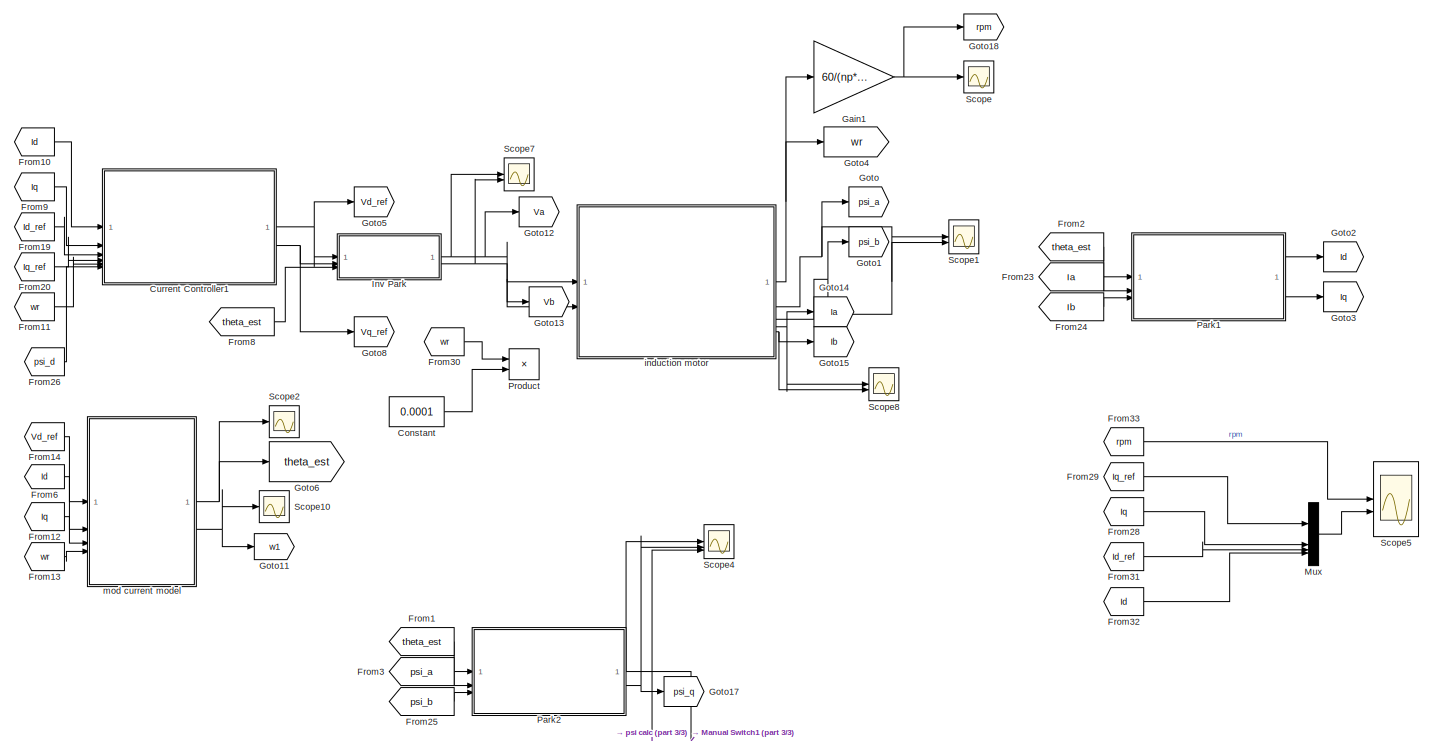
[diagram: root canvas - part 1/3, right side, full height]
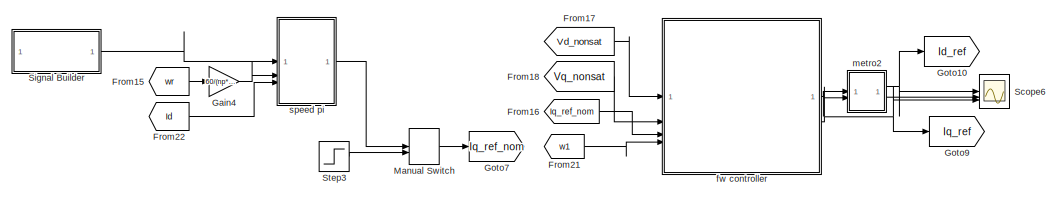
[diagram: root canvas - part 2/3, top left region]
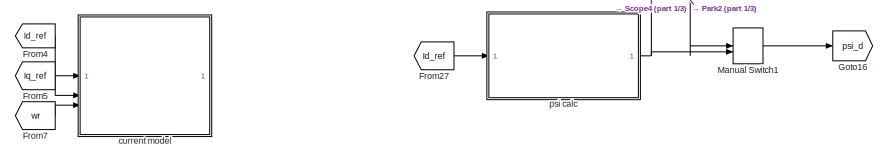
[diagram: root canvas - part 3/3, bottom center region]
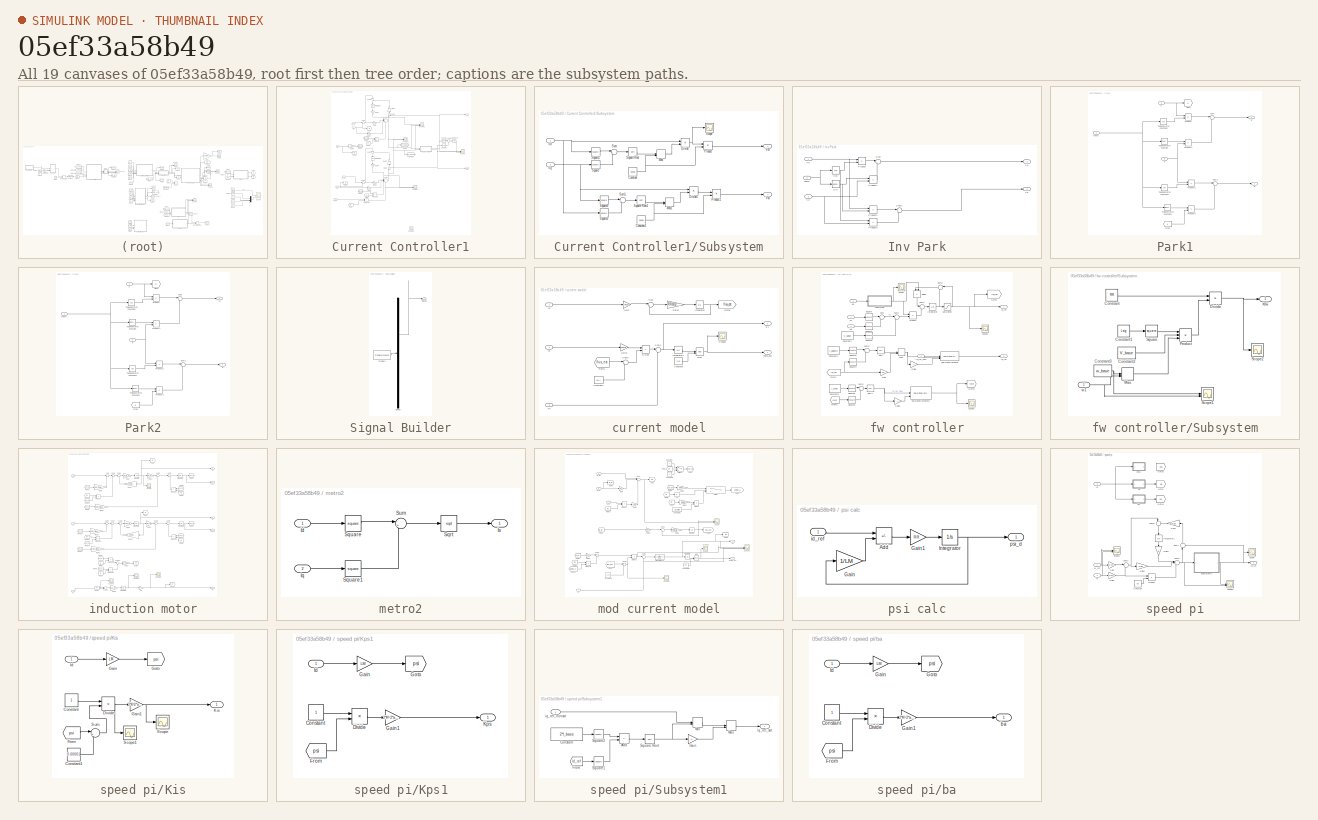
[diagram: thumbnail index - all 19 canvases of the model, root first then tree order]
MODEL slx_05ef33a58b49
KIND model
CONFIG AbsTol = auto
CONFIG EnableMultiTasking = off
CONFIG FixedStep = auto
CONFIG MaxStep = 1e-4
CONFIG MinStep = 1e-7
CONFIG RelTol = 1e-3
CONFIG SampleTimeConstraint = Unconstrained
CONFIG SolverName = ode15s
CONFIG StartTime = 0.0
CONFIG StopTime = 2
BLOCK [Constant] Constant
  Value = 0.0001
BLOCK [SubSystem] Current Controller1
BLOCK [From] Current Controller1/From
  GotoTag = Id
BLOCK [From] Current Controller1/From1
  GotoTag = wrxLsig
BLOCK [From] Current Controller1/From2
  GotoTag = wrxLsig
BLOCK [From] Current Controller1/From3
  GotoTag = Iq
BLOCK [From] Current Controller1/From4
  GotoTag = wr
BLOCK [Gain] Current Controller1/Gain
  Gain = Kp
BLOCK [Gain] Current Controller1/Gain1
  Gain = Ki
  NameLocation = left
BLOCK [Gain] Current Controller1/Gain2
  Gain = 1/Kp
  NameLocation = right
BLOCK [Gain] Current Controller1/Gain3
  Gain = Kp
BLOCK [Gain] Current Controller1/Gain4
  Gain = Ki
  NameLocation = left
BLOCK [Gain] Current Controller1/Gain5
  Gain = 1/Kp
  NameLocation = right
BLOCK [Gain] Current Controller1/Gain6
  Gain = Lsig
BLOCK [Gain] Current Controller1/Gain7
  Gain = Ra
BLOCK [Gain] Current Controller1/Gain8
  Gain = Ra
BLOCK [Goto] Current Controller1/Goto
  GotoTag = Id
BLOCK [Goto] Current Controller1/Goto1
  GotoTag = wrxLsig
BLOCK [Goto] Current Controller1/Goto2
  GotoTag = Iq
BLOCK [Goto] Current Controller1/Goto3
  GotoTag = Vq_nonsat
  TagVisibility = global
BLOCK [Goto] Current Controller1/Goto4
  GotoTag = Vd_nonsat
  TagVisibility = global
BLOCK [Goto] Current Controller1/Goto5
  GotoTag = wr
BLOCK [Inport] Current Controller1/Id
BLOCK [Inport] Current Controller1/Id_ref
  Port = 3
BLOCK [Integrator] Current Controller1/Integrator
  NameLocation = left
BLOCK [Integrator] Current Controller1/Integrator1
  NameLocation = left
BLOCK [Inport] Current Controller1/Iq
  Port = 2
BLOCK [Inport] Current Controller1/Iq_ref
  Port = 4
BLOCK [Product] Current Controller1/Product
BLOCK [Product] Current Controller1/Product1
BLOCK [Product] Current Controller1/Product2
BLOCK [Scope] Current Controller1/Scope
  Floating = off
  NameLocation = left
  NumInputPorts = 3
  ScopeSpecificationString = Simulink.scopes.TimeScopeBlockCfg('CurrentConfiguration', extmgr.ConfigurationSet(extmgr.Configuration('Core','General UI',true),extmgr.Configuration('Core','Source UI',true),extmgr.Configuration('Sources','WiredSimulink',true,'DataLoggingVariableName','ScopeData1'),extmgr.Configuration('Visuals','Time Domain',true,'SerializedDisplays',{struct('MinYLimReal','-21.80416','MaxYLimReal','231.91685','Y...<+1492ch>
BLOCK [Scope] Current Controller1/Scope1
  Floating = off
  NameLocation = left
  NumInputPorts = 3
  ScopeSpecificationString = Simulink.scopes.TimeScopeBlockCfg('CurrentConfiguration', extmgr.ConfigurationSet(extmgr.Configuration('Core','General UI',true),extmgr.Configuration('Core','Source UI',true),extmgr.Configuration('Sources','WiredSimulink',true,'DataLoggingVariableName','ScopeData4'),extmgr.Configuration('Visuals','Time Domain',true,'SerializedDisplays',{struct('MinYLimReal','-21.57256','MaxYLimReal','225.31033','Y...<+1476ch>
BLOCK [Scope] Current Controller1/Scope2
  Floating = off
  NameLocation = left
  NumInputPorts = 3
  ScopeSpecificationString = Simulink.scopes.TimeScopeBlockCfg('CurrentConfiguration', extmgr.ConfigurationSet(extmgr.Configuration('Core','General UI',true),extmgr.Configuration('Core','Source UI',true),extmgr.Configuration('Sources','WiredSimulink',true,'DataLoggingVariableName','ScopeData6'),extmgr.Configuration('Visuals','Time Domain',true,'SerializedDisplays',{struct('MinYLimReal','-21.57256','MaxYLimReal','225.31033','Y...<+1472ch>
BLOCK [Scope] Current Controller1/Scope3
  Floating = off
  NameLocation = left
  NumInputPorts = 3
  ScopeSpecificationString = Simulink.scopes.TimeScopeBlockCfg('CurrentConfiguration', extmgr.ConfigurationSet(extmgr.Configuration('Core','General UI',true),extmgr.Configuration('Core','Source UI',true),extmgr.Configuration('Sources','WiredSimulink',true,'DataLoggingVariableName','ScopeData3'),extmgr.Configuration('Visuals','Time Domain',true,'SerializedDisplays',{struct('MinYLimReal','-21.57256','MaxYLimReal','225.31033','Y...<+1476ch>
BLOCK [Scope] Current Controller1/Scope4
  Floating = off
  NameLocation = left
  NumInputPorts = 2
  ScopeSpecificationString = Simulink.scopes.TimeScopeBlockCfg('CurrentConfiguration', extmgr.ConfigurationSet(extmgr.Configuration('Core','General UI',true),extmgr.Configuration('Core','Source UI',true),extmgr.Configuration('Sources','WiredSimulink',true,'DataLoggingVariableName','ScopeData4'),extmgr.Configuration('Visuals','Time Domain',true,'SerializedDisplays',{struct('MinYLimReal','-149.36963','MaxYLimReal','1038.0781','...<+1502ch>
BLOCK [Math] Current Controller1/Square
  Operator = square
BLOCK [Sqrt] Current Controller1/Square Root
BLOCK [Math] Current Controller1/Square1
  Operator = square
BLOCK [SubSystem] Current Controller1/Subsystem
BLOCK [Constant] Current Controller1/Subsystem/Constant
  Value = Vpeak
BLOCK [Constant] Current Controller1/Subsystem/Constant1
  Value = Vpeak
BLOCK [Product] Current Controller1/Subsystem/Divide
  Inputs = */
BLOCK [Product] Current Controller1/Subsystem/Divide1
  Inputs = */
BLOCK [MinMax] Current Controller1/Subsystem/Max
  Function = max
  Inputs = 2
BLOCK [MinMax] Current Controller1/Subsystem/Max1
  Function = max
  Inputs = 2
BLOCK [Product] Current Controller1/Subsystem/Product
BLOCK [Product] Current Controller1/Subsystem/Product1
BLOCK [Scope] Current Controller1/Subsystem/Scope
  Floating = off
  NumInputPorts = 1
  ScopeSpecificationString = Simulink.scopes.TimeScopeBlockCfg('CurrentConfiguration', extmgr.ConfigurationSet(extmgr.Configuration('Core','General UI',true),extmgr.Configuration('Core','Source UI',true),extmgr.Configuration('Sources','WiredSimulink',true,'DataLoggingVariableName','ScopeData3'),extmgr.Configuration('Visuals','Time Domain',true,'SerializedDisplays',{struct('MinYLimReal','-0.03324','MaxYLimReal','0.74071','YLab...<+1407ch>
BLOCK [Math] Current Controller1/Subsystem/Square
  Operator = square
BLOCK [Sqrt] Current Controller1/Subsystem/Square Root
BLOCK [Sqrt] Current Controller1/Subsystem/Square Root1
BLOCK [Math] Current Controller1/Subsystem/Square1
  Operator = square
BLOCK [Math] Current Controller1/Subsystem/Square2
  Operator = square
BLOCK [Math] Current Controller1/Subsystem/Square3
  Operator = square
BLOCK [Sum] Current Controller1/Subsystem/Sum
  Inputs = |++
BLOCK [Sum] Current Controller1/Subsystem/Sum1
  Inputs = |++
BLOCK [Inport] Current Controller1/Subsystem/Vd
BLOCK [Outport] Current Controller1/Subsystem/Vd\
BLOCK [Inport] Current Controller1/Subsystem/Vq
  Port = 2
BLOCK [Outport] Current Controller1/Subsystem/Vq\
  Port = 2
BLOCK [Sum] Current Controller1/Sum
  Inputs = |+-
BLOCK [Sum] Current Controller1/Sum1
  Inputs = |++--
BLOCK [Sum] Current Controller1/Sum2
  Inputs = |-+
  NameLocation = right
BLOCK [Sum] Current Controller1/Sum3
  Inputs = |++
  NameLocation = left
BLOCK [Sum] Current Controller1/Sum4
  Inputs = |+-
BLOCK [Sum] Current Controller1/Sum5
  Inputs = |++-++
BLOCK [Sum] Current Controller1/Sum6
  Inputs = |-+
  NameLocation = right
BLOCK [Sum] Current Controller1/Sum7
  Inputs = |++
  NameLocation = left
BLOCK [Sum] Current Controller1/Sum8
  Inputs = |++
BLOCK [Outport] Current Controller1/Vd
BLOCK [Outport] Current Controller1/Vq
  Port = 2
BLOCK [Inport] Current Controller1/psi_d
  Port = 6
BLOCK [Inport] Current Controller1/wr
  Port = 5
BLOCK [From] From1
  GotoTag = theta_est
BLOCK [From] From10
  GotoTag = Id
BLOCK [From] From11
  GotoTag = wr
  TagVisibility = global
BLOCK [From] From12
  GotoTag = Iq
BLOCK [From] From13
  GotoTag = wr
  TagVisibility = global
BLOCK [From] From14
  GotoTag = Vd_ref
  TagVisibility = global
BLOCK [From] From15
  GotoTag = wr
  TagVisibility = global
BLOCK [From] From16
  GotoTag = Iq_ref_nom
  TagVisibility = global
BLOCK [From] From17
  GotoTag = Vd_nonsat
  TagVisibility = global
BLOCK [From] From18
  GotoTag = Vq_nonsat
  TagVisibility = global
BLOCK [From] From19
  GotoTag = Id_ref
  TagVisibility = global
BLOCK [From] From2
  GotoTag = theta_est
BLOCK [From] From20
  GotoTag = Iq_ref
  TagVisibility = global
BLOCK [From] From21
  GotoTag = w1
BLOCK [From] From22
  GotoTag = Id
BLOCK [From] From23
  GotoTag = Ia
BLOCK [From] From24
  GotoTag = Ib
BLOCK [From] From25
  GotoTag = psi_b
BLOCK [From] From26
  GotoTag = psi_d
BLOCK [From] From27
  GotoTag = Id_ref
  TagVisibility = global
BLOCK [From] From28
  GotoTag = Iq
BLOCK [From] From29
  GotoTag = Iq_ref
  TagVisibility = global
BLOCK [From] From3
  GotoTag = psi_a
BLOCK [From] From30
  GotoTag = wr
  TagVisibility = global
BLOCK [From] From31
  GotoTag = Id_ref
  TagVisibility = global
BLOCK [From] From32
  GotoTag = Id
BLOCK [From] From33
  GotoTag = rpm
  TagVisibility = global
BLOCK [From] From4
  GotoTag = Id_ref
  TagVisibility = global
BLOCK [From] From5
  GotoTag = Iq_ref
  TagVisibility = global
BLOCK [From] From6
  GotoTag = Id
BLOCK [From] From7
  GotoTag = wr
  TagVisibility = global
BLOCK [From] From8
  GotoTag = theta_est
BLOCK [From] From9
  GotoTag = Iq
BLOCK [Gain] Gain1
  Gain = 60/(np*2*pi)
BLOCK [Gain] Gain4
  Gain = 60/(np*2*pi)
BLOCK [Goto] Goto
  GotoTag = psi_a
BLOCK [Goto] Goto1
  GotoTag = psi_b
BLOCK [Goto] Goto10
  GotoTag = Id_ref
  TagVisibility = global
BLOCK [Goto] Goto11
  GotoTag = w1
BLOCK [Goto] Goto12
  GotoTag = Va
  TagVisibility = global
BLOCK [Goto] Goto13
  GotoTag = Vb
  TagVisibility = global
BLOCK [Goto] Goto14
  GotoTag = Ia
BLOCK [Goto] Goto15
  GotoTag = Ib
BLOCK [Goto] Goto16
  GotoTag = psi_d
BLOCK [Goto] Goto17
  GotoTag = psi_q
BLOCK [Goto] Goto18
  GotoTag = rpm
  TagVisibility = global
BLOCK [Goto] Goto2
  GotoTag = Id
BLOCK [Goto] Goto3
  GotoTag = Iq
BLOCK [Goto] Goto4
  GotoTag = wr
  TagVisibility = global
BLOCK [Goto] Goto5
  GotoTag = Vd_ref
  TagVisibility = global
BLOCK [Goto] Goto6
  GotoTag = theta_est
BLOCK [Goto] Goto7
  GotoTag = Iq_ref_nom
  TagVisibility = global
BLOCK [Goto] Goto8
  GotoTag = Vq_ref
  TagVisibility = global
BLOCK [Goto] Goto9
  GotoTag = Iq_ref
  TagVisibility = global
BLOCK [SubSystem] Inv Park
BLOCK [Trigonometry] Inv Park/Cos
  Operator = cos
BLOCK [Product] Inv Park/Product
BLOCK [Product] Inv Park/Product1
BLOCK [Product] Inv Park/Product2
BLOCK [Product] Inv Park/Product3
BLOCK [Trigonometry] Inv Park/Sin
BLOCK [Sum] Inv Park/Sum
  Inputs = |+-
BLOCK [Sum] Inv Park/Sum1
  Inputs = |++
BLOCK [Inport] Inv Park/Theta
  Port = 3
BLOCK [Inport] Inv Park/Vd
BLOCK [Inport] Inv Park/Vq
  Port = 2
BLOCK [Outport] Inv Park/Vα
BLOCK [Outport] Inv Park/Vβ
  Port = 2
BLOCK [ManualSwitch] Manual Switch
BLOCK [ManualSwitch] Manual Switch1
  CurrentSetting = 0
BLOCK [Mux] Mux
  DisplayOption = bar
BLOCK [SubSystem] Park1
BLOCK [From] Park1/From
  GotoTag = a
BLOCK [Goto] Park1/Goto
  GotoTag = a
BLOCK [Product] Park1/Product
BLOCK [Product] Park1/Product1
BLOCK [Product] Park1/Product2
BLOCK [Product] Park1/Product3
BLOCK [Sum] Park1/Sum
  Inputs = |++
BLOCK [Sum] Park1/Sum1
  Inputs = |+-
BLOCK [Trigonometry] Park1/Trigonometric Function
BLOCK [Trigonometry] Park1/Trigonometric Function1
BLOCK [Trigonometry] Park1/Trigonometric Function2
  Operator = cos
BLOCK [Trigonometry] Park1/Trigonometric Function3
  Operator = cos
BLOCK [Inport] Park1/a
  Port = 2
BLOCK [Inport] Park1/b
  Port = 3
BLOCK [Outport] Park1/d
BLOCK [Outport] Park1/q
  Port = 2
BLOCK [Inport] Park1/theta
BLOCK [SubSystem] Park2
BLOCK [From] Park2/From
  GotoTag = a
BLOCK [Goto] Park2/Goto
  GotoTag = a
BLOCK [Product] Park2/Product
BLOCK [Product] Park2/Product1
BLOCK [Product] Park2/Product2
BLOCK [Product] Park2/Product3
BLOCK [Sum] Park2/Sum
  Inputs = |++
BLOCK [Sum] Park2/Sum1
  Inputs = |+-
BLOCK [Trigonometry] Park2/Trigonometric Function
BLOCK [Trigonometry] Park2/Trigonometric Function1
BLOCK [Trigonometry] Park2/Trigonometric Function2
  Operator = cos
BLOCK [Trigonometry] Park2/Trigonometric Function3
  Operator = cos
BLOCK [Inport] Park2/a
  Port = 2
BLOCK [Inport] Park2/b
  Port = 3
BLOCK [Outport] Park2/d
BLOCK [Outport] Park2/q
  Port = 2
BLOCK [Inport] Park2/theta
BLOCK [Product] Product
BLOCK [Scope] Scope
  Floating = off
  NumInputPorts = 1
  ScopeSpecificationString = Simulink.scopes.TimeScopeBlockCfg('CurrentConfiguration', extmgr.ConfigurationSet(extmgr.Configuration('Core','General UI',true),extmgr.Configuration('Core','Source UI',true),extmgr.Configuration('Sources','WiredSimulink',true),extmgr.Configuration('Visuals','Time Domain',true,'SerializedDisplays',{struct('MinYLimReal','-135.11708','MaxYLimReal','1216.05371','YLabelReal','','MinYLimMag',' 0.00000'...<+1483ch>
BLOCK [Scope] Scope1
  Floating = off
  NumInputPorts = 3
  ScopeSpecificationString = Simulink.scopes.TimeScopeBlockCfg('CurrentConfiguration', extmgr.ConfigurationSet(extmgr.Configuration('Core','General UI',true),extmgr.Configuration('Core','Source UI',true),extmgr.Configuration('Sources','WiredSimulink',true,'DataLoggingVariableName','ScopeData1'),extmgr.Configuration('Visuals','Time Domain',true,'SerializedDisplays',{struct('MinYLimReal','-1.91219','MaxYLimReal','11.52559','YLa...<+1524ch>
BLOCK [Scope] Scope10
  Floating = off
  NumInputPorts = 1
  ScopeSpecificationString = Simulink.scopes.TimeScopeBlockCfg('CurrentConfiguration', extmgr.ConfigurationSet(extmgr.Configuration('Core','General UI',true),extmgr.Configuration('Core','Source UI',true),extmgr.Configuration('Sources','WiredSimulink',true,'DataLoggingVariableName','ScopeData2'),extmgr.Configuration('Visuals','Time Domain',true,'SerializedDisplays',{struct('MinYLimReal','-507.21205','MaxYLimReal','4564.90848',...<+1810ch>
BLOCK [Scope] Scope2
  Floating = off
  NumInputPorts = 1
  ScopeSpecificationString = Simulink.scopes.TimeScopeBlockCfg('CurrentConfiguration', extmgr.ConfigurationSet(extmgr.Configuration('Core','General UI',true),extmgr.Configuration('Core','Source UI',true),extmgr.Configuration('Sources','WiredSimulink',true,'DataLoggingVariableName','ScopeData3'),extmgr.Configuration('Visuals','Time Domain',true,'SerializedDisplays',{struct('MinYLimReal','-0.78539','MaxYLimReal','7.06848','YLab...<+1777ch>
BLOCK [Scope] Scope4
  Floating = off
  NumInputPorts = 3
  ScopeSpecificationString = Simulink.scopes.TimeScopeBlockCfg('CurrentConfiguration', extmgr.ConfigurationSet(extmgr.Configuration('Core','General UI',true),extmgr.Configuration('Core','Source UI',true),extmgr.Configuration('Sources','WiredSimulink',true,'DataLoggingVariableName','ScopeData2'),extmgr.Configuration('Visuals','Time Domain',true,'SerializedDisplays',{struct('MinYLimReal','-1.91219','MaxYLimReal','11.52559','YLa...<+1475ch>
BLOCK [Scope] Scope5
  Floating = off
  NumInputPorts = 2
  ScopeSpecificationString = Simulink.scopes.TimeScopeBlockCfg('CurrentConfiguration', extmgr.ConfigurationSet(extmgr.Configuration('Core','General UI',true),extmgr.Configuration('Core','Source UI',true),extmgr.Configuration('Sources','WiredSimulink',true,'DataLoggingVariableName','ScopeData5'),extmgr.Configuration('Visuals','Time Domain',true,'SerializedDisplays',{struct('MinYLimReal','-36.94288','MaxYLimReal','249.13938','Y...<+2524ch>
BLOCK [Scope] Scope6
  Floating = off
  NumInputPorts = 3
  ScopeSpecificationString = Simulink.scopes.TimeScopeBlockCfg('CurrentConfiguration', extmgr.ConfigurationSet(extmgr.Configuration('Core','General UI',true),extmgr.Configuration('Core','Source UI',true),extmgr.Configuration('Sources','WiredSimulink',true,'DataLoggingVariableName','ScopeData2'),extmgr.Configuration('Visuals','Time Domain',true,'SerializedDisplays',{struct('MinYLimReal','-1.43873','MaxYLimReal','11.47357','YLa...<+1852ch>
BLOCK [Scope] Scope7
  Floating = off
  NumInputPorts = 2
  ScopeSpecificationString = Simulink.scopes.TimeScopeBlockCfg('CurrentConfiguration', extmgr.ConfigurationSet(extmgr.Configuration('Core','General UI',true),extmgr.Configuration('Core','Source UI',true),extmgr.Configuration('Sources','WiredSimulink',true,'DataLoggingVariableName','ScopeData3'),extmgr.Configuration('Visuals','Time Domain',true,'SerializedDisplays',{struct('MinYLimReal','-405.82212','MaxYLimReal','399.71045','...<+1506ch>
BLOCK [Scope] Scope8
  Floating = off
  NumInputPorts = 2
  ScopeSpecificationString = Simulink.scopes.TimeScopeBlockCfg('CurrentConfiguration', extmgr.ConfigurationSet(extmgr.Configuration('Core','General UI',true),extmgr.Configuration('Core','Source UI',true),extmgr.Configuration('Sources','WiredSimulink',true,'DataLoggingVariableName','ScopeData9'),extmgr.Configuration('Visuals','Time Domain',true,'SerializedDisplays',{struct('MinYLimReal','-6.26999','MaxYLimReal','6.28958','YLab...<+1468ch>
BLOCK [SubSystem] Signal Builder
  ClipboardFcn = sigbuilder_block('clipboard');
  CloseFcn = sigbuilder_block('close');
  ContinueFcn = sigbuilder_block('continue');
  CopyFcn = sigbuilder_block('copy');
  DeleteFcn = sigbuilder_block('delete');
  LoadFcn = sigbuilder_block('load');
  MaskHideContents = on
  ModelCloseFcn = sigbuilder_block('modelClose');
  NameChangeFcn = sigbuilder_block('namechange');
  OpenFcn = sigbuilder_block('open',[437.6 199.2 550.4 400 ]);
  PauseFcn = sigbuilder_block('pause');
  PreSaveFcn = sigbuilder_block('preSave');
  StartFcn = sigbuilder_block('start');
  StopFcn = sigbuilder_block('stop');
  Tag = STV Subsys
BLOCK [Demux] Signal Builder/Demux
  DisplayOption = none
  Outputs = 1
  Tag = STV Demux
BLOCK [FromWorkspace] Signal Builder/FromWs
  Tag = STV FromWs
  VariableName = tuvar
BLOCK [Outport] Signal Builder/Signal 1
  Tag = STV Outport
BLOCK [Step] Step3
  After = 3
  SampleTime = 0
  Time = 0.3
BLOCK [SubSystem] current model
BLOCK [Constant] current model/Constant
  Value = 2*pi
BLOCK [Constant] current model/Constant2
  Value = 1e-4
BLOCK [Product] current model/Divide
  Inputs = */
BLOCK [From] current model/From6
  GotoTag = flux_est
BLOCK [Gain] current model/Gain
  Gain = LMest2
BLOCK [Gain] current model/Gain1
  Gain = RRest2
BLOCK [Gain] current model/Gain2
  Gain = RRest2/LMest2
BLOCK [Goto] current model/Goto5
  GotoTag = flux_est
BLOCK [Inport] current model/Id
BLOCK [Integrator] current model/Integrator
BLOCK [Integrator] current model/Integrator1
BLOCK [Inport] current model/Iq
  Port = 2
BLOCK [Math] current model/Mod
  Operator = mod
BLOCK [Scope] current model/Scope2
  Floating = off
  NumInputPorts = 1
  ScopeSpecificationString = Simulink.scopes.TimeScopeBlockCfg('CurrentConfiguration', extmgr.ConfigurationSet(extmgr.Configuration('Core','General UI',true),extmgr.Configuration('Core','Source UI',true),extmgr.Configuration('Sources','WiredSimulink',true,'DataLoggingVariableName','ScopeData2'),extmgr.Configuration('Visuals','Time Domain',true,'SerializedDisplays',{struct('MinYLimReal','-0.78533','MaxYLimReal','7.06795','YLab...<+1402ch>
BLOCK [Sum] current model/Sum
  Inputs = |+-
BLOCK [Sum] current model/Sum1
  Inputs = |++
BLOCK [Sum] current model/Sum2
  Inputs = |++
BLOCK [Outport] current model/Theta_est
BLOCK [Outport] current model/w1
  Port = 2
BLOCK [Inport] current model/wr
  Port = 3
BLOCK [SubSystem] fw controller
BLOCK [Constant] fw controller/Constant1
  Value = I_base*2
BLOCK [Constant] fw controller/Constant2
  Value = V_base
BLOCK [Constant] fw controller/Constant3
  Commented = on
  Value = I_max
BLOCK [Product] fw controller/Divide
  Inputs = */
  NameLocation = left
BLOCK [From] fw controller/From1
  GotoTag = Id_ref
BLOCK [From] fw controller/From2
  Commented = on
  GotoTag = Idref
BLOCK [Gain] fw controller/Gain
  Gain = ksi
BLOCK [Gain] fw controller/Gain1
  Gain = -1
BLOCK [Gain] fw controller/Gain2
  Commented = on
  Gain = -1
BLOCK [Goto] fw controller/Goto1
  GotoTag = Id_ref
BLOCK [Goto] fw controller/Goto3
  Commented = on
  GotoTag = Iqref
BLOCK [Outport] fw controller/Id_ref
BLOCK [Integrator] fw controller/Integrator
BLOCK [Outport] fw controller/Iq_ref
  Port = 2
BLOCK [Inport] fw controller/Iq_ref_nom
  Port = 3
BLOCK [MinMax] fw controller/Min1
  Inputs = 2
BLOCK [Product] fw controller/Product
BLOCK [Saturate] fw controller/Saturation
  LowerLimit = 0.05*Id_nom
  UpperLimit = Id_nom
BLOCK [Reference] fw controller/Saturation Dynamic  REF=simulink/Discontinuities/Saturation
Dynamic
  SourceBlock = simulink/Discontinuities/Saturation\nDynamic
  SourceType = Saturation Dynamic
BLOCK [Reference] fw controller/Saturation Dynamic1  REF=simulink/Discontinuities/Saturation
Dynamic
  Commented = on
  SourceBlock = simulink/Discontinuities/Saturation\nDynamic
  SourceType = Saturation Dynamic
BLOCK [Scope] fw controller/Scope
  Floating = off
  NumInputPorts = 1
  ScopeSpecificationString = Simulink.scopes.TimeScopeBlockCfg('CurrentConfiguration', extmgr.ConfigurationSet(extmgr.Configuration('Core','General UI',true),extmgr.Configuration('Core','Source UI',true),extmgr.Configuration('Sources','WiredSimulink',true,'DataLoggingVariableName','ScopeData3'),extmgr.Configuration('Visuals','Time Domain',true,'SerializedDisplays',{struct('MinYLimReal','0.02429','MaxYLimReal','0.04429','YLabe...<+1421ch>
BLOCK [Scope] fw controller/Scope1
  Floating = off
  NumInputPorts = 1
  ScopeSpecificationString = Simulink.scopes.TimeScopeBlockCfg('CurrentConfiguration', extmgr.ConfigurationSet(extmgr.Configuration('Core','General UI',true),extmgr.Configuration('Core','Source UI',true),extmgr.Configuration('Sources','WiredSimulink',true,'DataLoggingVariableName','ScopeData1'),extmgr.Configuration('Visuals','Time Domain',true,'SerializedDisplays',{struct('MinYLimReal','-0.03118','MaxYLimReal','2.77466','YLab...<+1424ch>
BLOCK [Scope] fw controller/Scope2
  Commented = on
  Floating = off
  NumInputPorts = 1
  ScopeSpecificationString = Simulink.scopes.TimeScopeBlockCfg('CurrentConfiguration', extmgr.ConfigurationSet(extmgr.Configuration('Core','General UI',true),extmgr.Configuration('Core','Source UI',true),extmgr.Configuration('Sources','WiredSimulink',true,'DataLoggingVariableName','ScopeData2'),extmgr.Configuration('Visuals','Time Domain',true,'SerializedDisplays',{struct('MinYLimReal','119.85463','MaxYLimReal','151.6162','YL...<+1784ch>
BLOCK [Sqrt] fw controller/Sqrt
BLOCK [Sqrt] fw controller/Sqrt1
  Commented = on
BLOCK [Math] fw controller/Square
  Operator = square
BLOCK [Math] fw controller/Square1
  Operator = square
BLOCK [Math] fw controller/Square2
  Operator = square
BLOCK [Math] fw controller/Square3
  Operator = square
BLOCK [Math] fw controller/Square4
  Operator = square
BLOCK [Math] fw controller/Square5
  Commented = on
  Operator = square
BLOCK [Math] fw controller/Square6
  Commented = on
  Operator = square
BLOCK [SubSystem] fw controller/Subsystem
BLOCK [Constant] fw controller/Subsystem/Constant
  Value = RR
BLOCK [Constant] fw controller/Subsystem/Constant1
  Value = Lsig
BLOCK [Constant] fw controller/Subsystem/Constant2
  Value = V_base
BLOCK [Constant] fw controller/Subsystem/Constant3
  Value = w_base
BLOCK [Product] fw controller/Subsystem/Divide
  Inputs = */
BLOCK [Outport] fw controller/Subsystem/Kfw
BLOCK [MinMax] fw controller/Subsystem/Max
  Function = max
  Inputs = 2
BLOCK [Product] fw controller/Subsystem/Product
  Inputs = 3
BLOCK [Scope] fw controller/Subsystem/Scope1
  Floating = off
  NumInputPorts = 2
  ScopeSpecificationString = Simulink.scopes.TimeScopeBlockCfg('CurrentConfiguration', extmgr.ConfigurationSet(extmgr.Configuration('Core','General UI',true),extmgr.Configuration('Core','Source UI',true),extmgr.Configuration('Sources','WiredSimulink',true,'DataLoggingVariableName','ScopeData3'),extmgr.Configuration('Visuals','Time Domain',true,'SerializedDisplays',{struct('MinYLimReal','-122.03051','MaxYLimReal','889.87406','...<+1446ch>
BLOCK [Scope] fw controller/Subsystem/Scope2
  Floating = off
  NumInputPorts = 2
  ScopeSpecificationString = Simulink.scopes.TimeScopeBlockCfg('CurrentConfiguration', extmgr.ConfigurationSet(extmgr.Configuration('Core','General UI',true),extmgr.Configuration('Core','Source UI',true),extmgr.Configuration('Sources','WiredSimulink',true,'DataLoggingVariableName','ScopeData3'),extmgr.Configuration('Visuals','Time Domain',true,'SerializedDisplays',{struct('MinYLimReal','-0.00429','MaxYLimReal','0.03858','YLab...<+1432ch>
BLOCK [Math] fw controller/Subsystem/Square
  Operator = square
BLOCK [Inport] fw controller/Subsystem/w1
BLOCK [Sum] fw controller/Sum
  Inputs = |++
BLOCK [Sum] fw controller/Sum1
  Inputs = |-+
BLOCK [Sum] fw controller/Sum2
  Inputs = |+-
  NameLocation = top
BLOCK [Sum] fw controller/Sum3
  Inputs = |+-
BLOCK [Sum] fw controller/Sum4
  Inputs = |++
BLOCK [Sum] fw controller/Sum5
  Commented = on
  Inputs = |+-
BLOCK [Inport] fw controller/Vd
BLOCK [Inport] fw controller/Vq
  Port = 2
BLOCK [Inport] fw controller/w1
  Port = 4
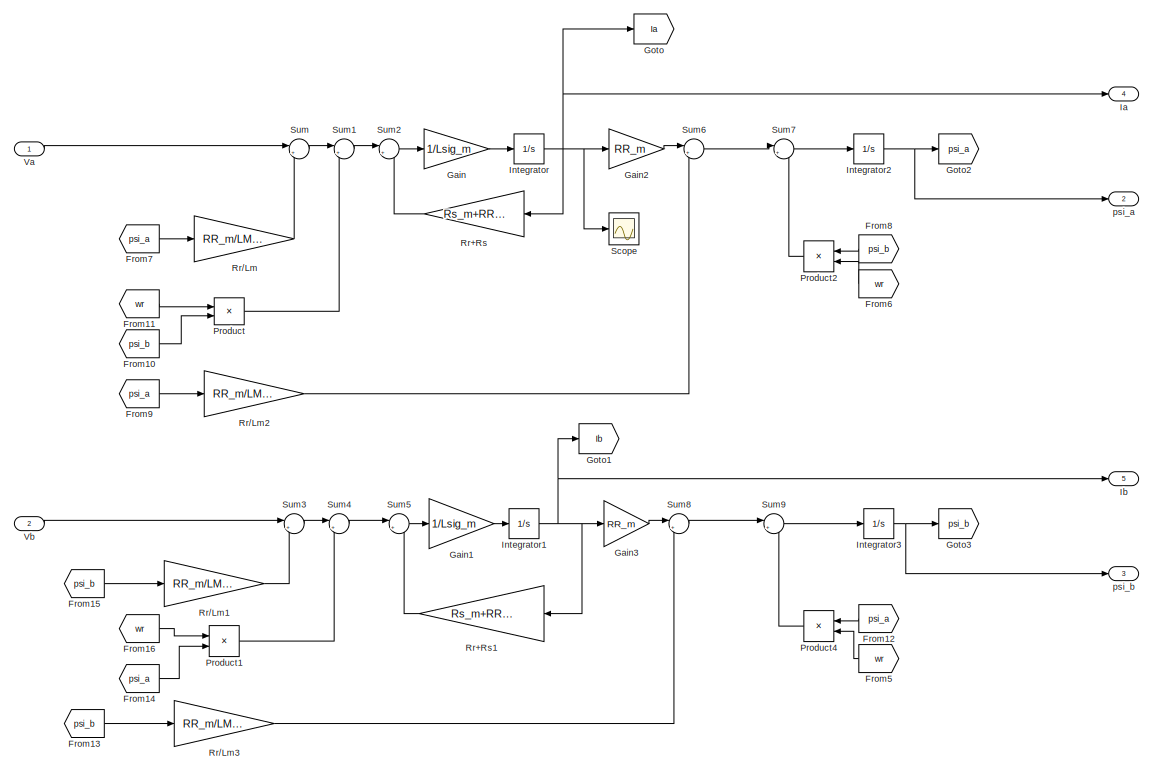
[diagram: induction motor - part 1/2, full width, middle band]
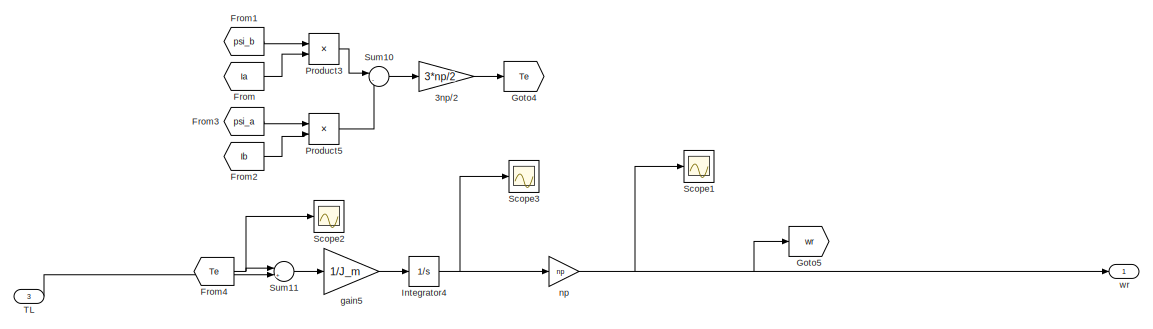
[diagram: induction motor - part 2/2, full width, bottom band]
BLOCK [SubSystem] induction motor
BLOCK [Gain] induction motor/3np//2
  Gain = 3*np/2
BLOCK [From] induction motor/From
  GotoTag = Ia
BLOCK [From] induction motor/From1
  GotoTag = psi_b
BLOCK [From] induction motor/From10
  GotoTag = psi_b
BLOCK [From] induction motor/From11
  GotoTag = wr
BLOCK [From] induction motor/From12
  GotoTag = psi_a
  NameLocation = top
BLOCK [From] induction motor/From13
  GotoTag = psi_b
BLOCK [From] induction motor/From14
  GotoTag = psi_a
BLOCK [From] induction motor/From15
  GotoTag = psi_b
BLOCK [From] induction motor/From16
  GotoTag = wr
BLOCK [From] induction motor/From2
  GotoTag = Ib
BLOCK [From] induction motor/From3
  GotoTag = psi_a
BLOCK [From] induction motor/From4
  GotoTag = Te
BLOCK [From] induction motor/From5
  GotoTag = wr
  NameLocation = top
BLOCK [From] induction motor/From6
  GotoTag = wr
  NameLocation = top
BLOCK [From] induction motor/From7
  GotoTag = psi_a
BLOCK [From] induction motor/From8
  GotoTag = psi_b
  NameLocation = top
BLOCK [From] induction motor/From9
  GotoTag = psi_a
BLOCK [Gain] induction motor/Gain
  Gain = 1/Lsig_m
BLOCK [Gain] induction motor/Gain1
  Gain = 1/Lsig_m
BLOCK [Gain] induction motor/Gain2
  Gain = RR_m
BLOCK [Gain] induction motor/Gain3
  Gain = RR_m
BLOCK [Goto] induction motor/Goto
  GotoTag = Ia
BLOCK [Goto] induction motor/Goto1
  GotoTag = Ib
BLOCK [Goto] induction motor/Goto2
  GotoTag = psi_a
BLOCK [Goto] induction motor/Goto3
  GotoTag = psi_b
BLOCK [Goto] induction motor/Goto4
  GotoTag = Te
BLOCK [Goto] induction motor/Goto5
  GotoTag = wr
BLOCK [Outport] induction motor/Ia
  Port = 4
BLOCK [Outport] induction motor/Ib
  Port = 5
BLOCK [Integrator] induction motor/Integrator
BLOCK [Integrator] induction motor/Integrator1
BLOCK [Integrator] induction motor/Integrator2
BLOCK [Integrator] induction motor/Integrator3
BLOCK [Integrator] induction motor/Integrator4
BLOCK [Product] induction motor/Product
BLOCK [Product] induction motor/Product1
BLOCK [Product] induction motor/Product2
  NameLocation = top
BLOCK [Product] induction motor/Product3
BLOCK [Product] induction motor/Product4
  NameLocation = top
BLOCK [Product] induction motor/Product5
BLOCK [Gain] induction motor/Rr+Rs
  Gain = Rs_m+RR_m
  NameLocation = top
BLOCK [Gain] induction motor/Rr+Rs1
  Gain = Rs_m+RR_m
  NameLocation = top
BLOCK [Gain] induction motor/Rr//Lm
  Gain = RR_m/LM_m
BLOCK [Gain] induction motor/Rr//Lm1
  Gain = RR_m/LM_m
BLOCK [Gain] induction motor/Rr//Lm2
  Gain = RR_m/LM_m
BLOCK [Gain] induction motor/Rr//Lm3
  Gain = RR_m/LM_m
BLOCK [Scope] induction motor/Scope
  Floating = off
  NumInputPorts = 1
  ScopeSpecificationString = Simulink.scopes.TimeScopeBlockCfg('CurrentConfiguration', extmgr.ConfigurationSet(extmgr.Configuration('Core','General UI',true),extmgr.Configuration('Core','Source UI',true),extmgr.Configuration('Sources','WiredSimulink',true,'DataLoggingVariableName','ScopeData2'),extmgr.Configuration('Visuals','Time Domain',true,'SerializedDisplays',{struct('MinYLimReal','-3.26418','MaxYLimReal','3.26434','YLab...<+1369ch>
BLOCK [Scope] induction motor/Scope1
  Floating = off
  NumInputPorts = 1
  ScopeSpecificationString = Simulink.scopes.TimeScopeBlockCfg('CurrentConfiguration', extmgr.ConfigurationSet(extmgr.Configuration('Core','General UI',true),extmgr.Configuration('Core','Source UI',true),extmgr.Configuration('Sources','WiredSimulink',true,'DataLoggingVariableName','ScopeData7'),extmgr.Configuration('Visuals','Time Domain',true,'SerializedDisplays',{struct('MinYLimReal','-47.14796','MaxYLimReal','424.33166','Y...<+1371ch>
BLOCK [Scope] induction motor/Scope2
  Floating = off
  NumInputPorts = 1
  ScopeSpecificationString = Simulink.scopes.TimeScopeBlockCfg('CurrentConfiguration', extmgr.ConfigurationSet(extmgr.Configuration('Core','General UI',true),extmgr.Configuration('Core','Source UI',true),extmgr.Configuration('Sources','WiredSimulink',true,'DataLoggingVariableName','ScopeData3'),extmgr.Configuration('Visuals','Time Domain',true,'SerializedDisplays',{struct('MinYLimReal','-4.2324','MaxYLimReal','31.49797','YLab...<+1505ch>
BLOCK [Scope] induction motor/Scope3
  Floating = off
  NumInputPorts = 1
  ScopeSpecificationString = Simulink.scopes.TimeScopeBlockCfg('CurrentConfiguration', extmgr.ConfigurationSet(extmgr.Configuration('Core','General UI',true),extmgr.Configuration('Core','Source UI',true),extmgr.Configuration('Sources','WiredSimulink',true,'DataLoggingVariableName','ScopeData8'),extmgr.Configuration('Visuals','Time Domain',true,'SerializedDisplays',{struct('MinYLimReal','-23.57398','MaxYLimReal','212.16583','Y...<+1422ch>
BLOCK [Sum] induction motor/Sum
  Inputs = |++
BLOCK [Sum] induction motor/Sum1
  Inputs = |++
BLOCK [Sum] induction motor/Sum10
  Inputs = |-+
BLOCK [Sum] induction motor/Sum11
  Inputs = |+-
BLOCK [Sum] induction motor/Sum2
  Inputs = |+-
BLOCK [Sum] induction motor/Sum3
  Inputs = |++
BLOCK [Sum] induction motor/Sum4
  Inputs = |+-
BLOCK [Sum] induction motor/Sum5
  Inputs = |+-
BLOCK [Sum] induction motor/Sum6
  Inputs = |+-
BLOCK [Sum] induction motor/Sum7
  Inputs = |+-
BLOCK [Sum] induction motor/Sum8
  Inputs = |+-
BLOCK [Sum] induction motor/Sum9
  Inputs = |++
BLOCK [Inport] induction motor/TL
  Port = 3
BLOCK [Inport] induction motor/Va
BLOCK [Inport] induction motor/Vb
  Port = 2
BLOCK [Gain] induction motor/gain5
  Gain = 1/J_m
BLOCK [Gain] induction motor/np
  Gain = np
BLOCK [Outport] induction motor/psi_a
  Port = 2
BLOCK [Outport] induction motor/psi_b
  Port = 3
BLOCK [Outport] induction motor/wr
BLOCK [SubSystem] metro2
BLOCK [Inport] metro2/Id
BLOCK [Inport] metro2/Iq
  Port = 2
BLOCK [Outport] metro2/Is
BLOCK [Sqrt] metro2/Sqrt
BLOCK [Math] metro2/Square
  Operator = square
BLOCK [Math] metro2/Square1
  Operator = square
BLOCK [Sum] metro2/Sum
  Inputs = |++
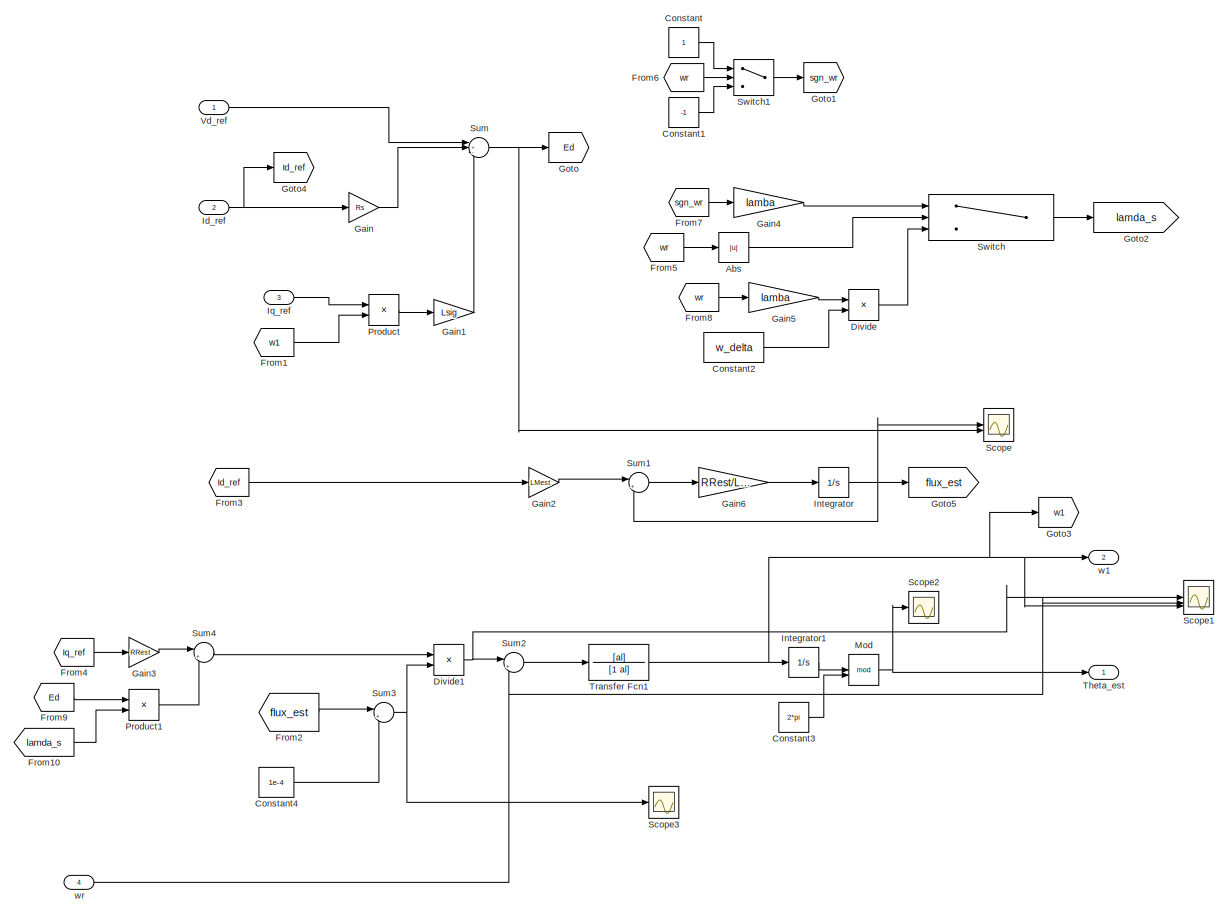
[diagram: mod current model - part 1/1, most of the canvas]
BLOCK [SubSystem] mod current model
BLOCK [Abs] mod current model/Abs
  SaturateOnIntegerOverflow = off
BLOCK [Constant] mod current model/Constant
BLOCK [Constant] mod current model/Constant1
  Value = -1
BLOCK [Constant] mod current model/Constant2
  Value = w_delta
BLOCK [Constant] mod current model/Constant3
  Value = 2*pi
BLOCK [Constant] mod current model/Constant4
  Value = 1e-4
BLOCK [Product] mod current model/Divide
  Inputs = */
BLOCK [Product] mod current model/Divide1
  Inputs = */
BLOCK [From] mod current model/From1
  GotoTag = w1
BLOCK [From] mod current model/From10
  GotoTag = lamda_s
BLOCK [From] mod current model/From2
  GotoTag = flux_est
BLOCK [From] mod current model/From3
  GotoTag = Id_ref
BLOCK [From] mod current model/From4
  GotoTag = Iq_ref
  TagVisibility = global
BLOCK [From] mod current model/From5
  GotoTag = wr
  TagVisibility = global
BLOCK [From] mod current model/From6
  GotoTag = wr
  TagVisibility = global
BLOCK [From] mod current model/From7
  GotoTag = sgn_wr
BLOCK [From] mod current model/From8
  GotoTag = wr
  TagVisibility = global
BLOCK [From] mod current model/From9
  GotoTag = Ed
BLOCK [Gain] mod current model/Gain
  Gain = Rs
BLOCK [Gain] mod current model/Gain1
  Gain = Lsig
BLOCK [Gain] mod current model/Gain2
  Gain = LMest
BLOCK [Gain] mod current model/Gain3
  Gain = RRest
BLOCK [Gain] mod current model/Gain4
  Gain = lamba
BLOCK [Gain] mod current model/Gain5
  Gain = lamba
BLOCK [Gain] mod current model/Gain6
  Gain = RRest/LMest
BLOCK [Goto] mod current model/Goto
  GotoTag = Ed
BLOCK [Goto] mod current model/Goto1
  GotoTag = sgn_wr
BLOCK [Goto] mod current model/Goto2
  GotoTag = lamda_s
BLOCK [Goto] mod current model/Goto3
  GotoTag = w1
BLOCK [Goto] mod current model/Goto4
  GotoTag = Id_ref
BLOCK [Goto] mod current model/Goto5
  GotoTag = flux_est
BLOCK [Inport] mod current model/Id_ref
  Port = 2
BLOCK [Integrator] mod current model/Integrator
BLOCK [Integrator] mod current model/Integrator1
BLOCK [Inport] mod current model/Iq_ref
  Port = 3
BLOCK [Math] mod current model/Mod
  Operator = mod
BLOCK [Product] mod current model/Product
BLOCK [Product] mod current model/Product1
BLOCK [Scope] mod current model/Scope
  Floating = off
  NumInputPorts = 2
  ScopeSpecificationString = Simulink.scopes.TimeScopeBlockCfg('CurrentConfiguration', extmgr.ConfigurationSet(extmgr.Configuration('Core','General UI',true),extmgr.Configuration('Core','Source UI',true),extmgr.Configuration('Sources','WiredSimulink',true,'DataLoggingVariableName','ScopeData6'),extmgr.Configuration('Visuals','Time Domain',true,'SerializedDisplays',{struct('MinYLimReal','-0.11511','MaxYLimReal','1.03603','YLab...<+2044ch>
BLOCK [Scope] mod current model/Scope1
  Floating = off
  NumInputPorts = 3
  ScopeSpecificationString = Simulink.scopes.TimeScopeBlockCfg('CurrentConfiguration', extmgr.ConfigurationSet(extmgr.Configuration('Core','General UI',true),extmgr.Configuration('Core','Source UI',true),extmgr.Configuration('Sources','WiredSimulink',true,'DataLoggingVariableName','ScopeData7'),extmgr.Configuration('Visuals','Time Domain',true,'SerializedDisplays',{struct('MinYLimReal','-12.70138','MaxYLimReal','114.31245','Y...<+1452ch>
BLOCK [Scope] mod current model/Scope2
  Floating = off
  NumInputPorts = 1
  ScopeSpecificationString = Simulink.scopes.TimeScopeBlockCfg('CurrentConfiguration', extmgr.ConfigurationSet(extmgr.Configuration('Core','General UI',true),extmgr.Configuration('Core','Source UI',true),extmgr.Configuration('Sources','WiredSimulink',true,'DataLoggingVariableName','ScopeData1'),extmgr.Configuration('Visuals','Time Domain',true,'SerializedDisplays',{struct('MinYLimReal','-0.7853','MaxYLimReal','7.06773','YLabe...<+1400ch>
BLOCK [Scope] mod current model/Scope3
  Floating = off
  NumInputPorts = 1
  ScopeSpecificationString = Simulink.scopes.TimeScopeBlockCfg('CurrentConfiguration', extmgr.ConfigurationSet(extmgr.Configuration('Core','General UI',true),extmgr.Configuration('Core','Source UI',true),extmgr.Configuration('Sources','WiredSimulink',true,'DataLoggingVariableName','ScopeData8'),extmgr.Configuration('Visuals','Time Domain',true,'SerializedDisplays',{struct('MinYLimReal','-0.11501','MaxYLimReal','1.03613','YLab...<+1363ch>
BLOCK [Sum] mod current model/Sum
  Inputs = |+-+
BLOCK [Sum] mod current model/Sum1
  Inputs = |+-
BLOCK [Sum] mod current model/Sum2
  Inputs = |++
BLOCK [Sum] mod current model/Sum3
  Inputs = |++
BLOCK [Sum] mod current model/Sum4
  Inputs = |+-
BLOCK [Switch] mod current model/Switch
  Criteria = u2 > Threshold
  InputSameDT = off
  SaturateOnIntegerOverflow = off
  Threshold = w_delta
BLOCK [Switch] mod current model/Switch1
  Criteria = u2 > Threshold
  InputSameDT = off
  SaturateOnIntegerOverflow = off
BLOCK [Outport] mod current model/Theta_est
BLOCK [TransferFcn] mod current model/Transfer Fcn1
  Denominator = [1 al]
  Numerator = [al]
BLOCK [Inport] mod current model/Vd_ref
BLOCK [Outport] mod current model/w1
  Port = 2
BLOCK [Inport] mod current model/wr
  Port = 4
BLOCK [SubSystem] psi calc
BLOCK [Sum] psi calc/Add
  IconShape = rectangular
  Inputs = +-
BLOCK [Gain] psi calc/Gain
  Gain = 1/LM
BLOCK [Gain] psi calc/Gain1
  Gain = RR
BLOCK [Integrator] psi calc/Integrator
BLOCK [Inport] psi calc/id_ref
BLOCK [Outport] psi calc/psi_d
BLOCK [SubSystem] speed pi
BLOCK [Gain] speed pi/1//Kps
  Gain = 1/Kps
BLOCK [Constant] speed pi/Constant
  Value = ba
BLOCK [Gain] speed pi/Gain
  Gain = (2*pi)/60
BLOCK [Gain] speed pi/Gain1
  Gain = (2*pi)/60
BLOCK [Gain] speed pi/Gain2
  Gain = Kps
BLOCK [Gain] speed pi/Gain3
  Gain = Kis
  NameLocation = left
BLOCK [Goto] speed pi/Goto
  GotoTag = Kis
BLOCK [Goto] speed pi/Goto1
  GotoTag = ba
BLOCK [Goto] speed pi/Goto2
  GotoTag = Kps
BLOCK [Inport] speed pi/Id
  Port = 3
BLOCK [Integrator] speed pi/Integrator1
  NameLocation = left
BLOCK [Outport] speed pi/Iq_ref
BLOCK [SubSystem] speed pi/Kis
BLOCK [Constant] speed pi/Kis/Constant
BLOCK [Constant] speed pi/Kis/Constant1
  Value = 0.00001
BLOCK [Product] speed pi/Kis/Divide
  Inputs = */
BLOCK [From] speed pi/Kis/From
  GotoTag = psi
BLOCK [Gain] speed pi/Kis/Gain
  Gain = LM
BLOCK [Gain] speed pi/Kis/Gain1
  Gain = 2*K^2*as^2*J/(3*np^2)
BLOCK [Goto] speed pi/Kis/Goto
  GotoTag = psi
BLOCK [Inport] speed pi/Kis/Id
BLOCK [Outport] speed pi/Kis/Kis
BLOCK [Scope] speed pi/Kis/Scope
  Floating = off
  NumInputPorts = 1
  ScopeSpecificationString = Simulink.scopes.TimeScopeBlockCfg('CurrentConfiguration', extmgr.ConfigurationSet(extmgr.Configuration('Core','General UI',true),extmgr.Configuration('Core','Source UI',true),extmgr.Configuration('Sources','WiredSimulink',true,'DataLoggingVariableName','ScopeData16'),extmgr.Configuration('Visuals','Time Domain',true,'SerializedDisplays',{struct('MinYLimReal','-3612.18952','MaxYLimReal','5232.83883...<+1448ch>
BLOCK [Scope] speed pi/Kis/Scope1
  Floating = off
  NumInputPorts = 1
  ScopeSpecificationString = Simulink.scopes.TimeScopeBlockCfg('CurrentConfiguration', extmgr.ConfigurationSet(extmgr.Configuration('Core','General UI',true),extmgr.Configuration('Core','Source UI',true),extmgr.Configuration('Sources','WiredSimulink',true,'DataLoggingVariableName','ScopeData17'),extmgr.Configuration('Visuals','Time Domain',true,'SerializedDisplays',{struct('MinYLimReal','-1.11941','MaxYLimReal','2.37055','YLa...<+1425ch>
BLOCK [Sum] speed pi/Kis/Sum
  Inputs = |++
BLOCK [SubSystem] speed pi/Kps1
BLOCK [Constant] speed pi/Kps1/Constant
BLOCK [Product] speed pi/Kps1/Divide
  Inputs = */
BLOCK [From] speed pi/Kps1/From
  GotoTag = psi
BLOCK [Gain] speed pi/Kps1/Gain
  Gain = LM
BLOCK [Gain] speed pi/Kps1/Gain1
  Gain = 2*K^2*as*J/(3*np^2)
BLOCK [Goto] speed pi/Kps1/Goto
  GotoTag = psi
BLOCK [Inport] speed pi/Kps1/Id
BLOCK [Outport] speed pi/Kps1/Kps
BLOCK [Inport] speed pi/N
  Port = 2
BLOCK [Inport] speed pi/N_ref
BLOCK [Product] speed pi/Product
BLOCK [Scope] speed pi/Scope
  Floating = off
  NumInputPorts = 1
  ScopeSpecificationString = Simulink.scopes.TimeScopeBlockCfg('CurrentConfiguration', extmgr.ConfigurationSet(extmgr.Configuration('Core','General UI',true),extmgr.Configuration('Core','Source UI',true),extmgr.Configuration('Sources','WiredSimulink',true,'DataLoggingVariableName','ScopeData3'),extmgr.Configuration('Visuals','Time Domain',true,'SerializedDisplays',{struct('MinYLimReal','-1.23439','MaxYLimReal','11.10622','YLa...<+1469ch>
BLOCK [Scope] speed pi/Scope1
  Floating = off
  NumInputPorts = 2
  ScopeSpecificationString = Simulink.scopes.TimeScopeBlockCfg('CurrentConfiguration', extmgr.ConfigurationSet(extmgr.Configuration('Core','General UI',true),extmgr.Configuration('Core','Source UI',true),extmgr.Configuration('Sources','WiredSimulink',true,'DataLoggingVariableName','ScopeData1'),extmgr.Configuration('Visuals','Time Domain',true,'SerializedDisplays',{struct('MinYLimReal','-125.00000','MaxYLimReal','1125.00003',...<+1466ch>
BLOCK [Scope] speed pi/Scope4
  Floating = off
  NumInputPorts = 2
  ScopeSpecificationString = Simulink.scopes.TimeScopeBlockCfg('CurrentConfiguration', extmgr.ConfigurationSet(extmgr.Configuration('Core','General UI',true),extmgr.Configuration('Core','Source UI',true),extmgr.Configuration('Sources','WiredSimulink',true,'DataLoggingVariableName','ScopeData9'),extmgr.Configuration('Visuals','Time Domain',true,'SerializedDisplays',{struct('MinYLimReal','-405.82212','MaxYLimReal','399.71045','...<+1500ch>
BLOCK [SubSystem] speed pi/Subsystem1
BLOCK [Sum] speed pi/Subsystem1/Add
  IconShape = rectangular
  Inputs = +-
BLOCK [Constant] speed pi/Subsystem1/Constant
  Value = 2*I_base
BLOCK [From] speed pi/Subsystem1/From
  GotoTag = Id_ref
  TagVisibility = global
BLOCK [Gain] speed pi/Subsystem1/Gain
  Gain = -1
BLOCK [MinMax] speed pi/Subsystem1/Max
  Function = max
  Inputs = 2
BLOCK [MinMax] speed pi/Subsystem1/Min
  Inputs = 2
BLOCK [Sqrt] speed pi/Subsystem1/Square Root
BLOCK [Math] speed pi/Subsystem1/Square1
  Operator = square
BLOCK [Math] speed pi/Subsystem1/Square2
  Operator = square
BLOCK [Inport] speed pi/Subsystem1/iq_ref_nonsat
BLOCK [Outport] speed pi/Subsystem1/iq_ref_sat
BLOCK [Sum] speed pi/Sum1
  Inputs = |+-
BLOCK [Sum] speed pi/Sum6
  Inputs = |++
  NameLocation = left
BLOCK [Sum] speed pi/Sum7
  Inputs = |-+
  NameLocation = right
BLOCK [Sum] speed pi/Sum8
  Inputs = |++-
  NameLocation = top
BLOCK [SubSystem] speed pi/ba
BLOCK [Constant] speed pi/ba/Constant
BLOCK [Product] speed pi/ba/Divide
  Inputs = */
BLOCK [From] speed pi/ba/From
  GotoTag = psi
BLOCK [Gain] speed pi/ba/Gain
  Gain = LM
BLOCK [Gain] speed pi/ba/Gain1
  Gain = 2*K^2*as^2*J/(3*np^2)
BLOCK [Goto] speed pi/ba/Goto
  GotoTag = psi
BLOCK [Inport] speed pi/ba/Id
BLOCK [Outport] speed pi/ba/ba
LINE Constant:1 -> Product:2
LINE Current Controller1/From1:1 -> Current Controller1/Product:1
LINE Current Controller1/From2:1 -> Current Controller1/Product1:1
LINE Current Controller1/From3:1 -> Current Controller1/Product:2
LINE Current Controller1/From4:1 -> Current Controller1/Product2:2
LINE Current Controller1/From:1 -> Current Controller1/Product1:2
NET Current Controller1/Gain1:1 -> Current Controller1/Scope2:1, Current Controller1/Sum1:1
LINE Current Controller1/Gain2:1 -> Current Controller1/Sum3:2
LINE Current Controller1/Gain3:1 -> Current Controller1/Sum5:2
NET Current Controller1/Gain4:1 -> Current Controller1/Scope4:1, Current Controller1/Sum5:1
LINE Current Controller1/Gain5:1 -> Current Controller1/Sum7:2
LINE Current Controller1/Gain6:1 -> Current Controller1/Goto1:1
LINE Current Controller1/Gain7:1 -> Current Controller1/Sum1:3
LINE Current Controller1/Gain8:1 -> Current Controller1/Sum5:3
LINE Current Controller1/Gain:1 -> Current Controller1/Sum1:2
NET Current Controller1/Id:1 -> Current Controller1/Gain7:1, Current Controller1/Goto:1, Current Controller1/Sum:2
LINE Current Controller1/Id_ref:1 -> Current Controller1/Sum:1
LINE Current Controller1/Integrator1:1 -> Current Controller1/Gain4:1
LINE Current Controller1/Integrator:1 -> Current Controller1/Gain1:1
NET Current Controller1/Iq:1 -> Current Controller1/Gain8:1, Current Controller1/Goto2:1, Current Controller1/Sum4:2
LINE Current Controller1/Iq_ref:1 -> Current Controller1/Sum4:1
LINE Current Controller1/Product1:1 -> Current Controller1/Sum5:4
NET Current Controller1/Product2:1 -> Current Controller1/Scope4:2, Current Controller1/Sum5:5
LINE Current Controller1/Product:1 -> Current Controller1/Sum1:4
LINE Current Controller1/Square Root:1 -> Current Controller1/Scope:3
LINE Current Controller1/Square1:1 -> Current Controller1/Sum8:2
LINE Current Controller1/Square:1 -> Current Controller1/Sum8:1
NET Current Controller1/Subsystem/Constant1:1 -> Current Controller1/Subsystem/Max1:2, Current Controller1/Subsystem/Product1:2
NET Current Controller1/Subsystem/Constant:1 -> Current Controller1/Subsystem/Max:2, Current Controller1/Subsystem/Product:2
LINE Current Controller1/Subsystem/Divide1:1 -> Current Controller1/Subsystem/Product1:1
NET Current Controller1/Subsystem/Divide:1 -> Current Controller1/Subsystem/Product:1, Current Controller1/Subsystem/Scope:1
LINE Current Controller1/Subsystem/Max1:1 -> Current Controller1/Subsystem/Divide1:2
LINE Current Controller1/Subsystem/Max:1 -> Current Controller1/Subsystem/Divide:2
LINE Current Controller1/Subsystem/Product1:1 -> Current Controller1/Subsystem/Vq\:1
LINE Current Controller1/Subsystem/Product:1 -> Current Controller1/Subsystem/Vd\:1
LINE Current Controller1/Subsystem/Square Root1:1 -> Current Controller1/Subsystem/Max1:1
LINE Current Controller1/Subsystem/Square Root:1 -> Current Controller1/Subsystem/Max:1
LINE Current Controller1/Subsystem/Square1:1 -> Current Controller1/Subsystem/Sum:1
LINE Current Controller1/Subsystem/Square2:1 -> Current Controller1/Subsystem/Sum1:2
LINE Current Controller1/Subsystem/Square3:1 -> Current Controller1/Subsystem/Sum1:1
LINE Current Controller1/Subsystem/Square:1 -> Current Controller1/Subsystem/Sum:2
LINE Current Controller1/Subsystem/Sum1:1 -> Current Controller1/Subsystem/Square Root1:1
LINE Current Controller1/Subsystem/Sum:1 -> Current Controller1/Subsystem/Square Root:1
NET Current Controller1/Subsystem/Vd:1 -> Current Controller1/Subsystem/Divide:1, Current Controller1/Subsystem/Square1:1, Current Controller1/Subsystem/Square2:1
NET Current Controller1/Subsystem/Vq:1 -> Current Controller1/Subsystem/Divide1:1, Current Controller1/Subsystem/Square3:1, Current Controller1/Subsystem/Square:1
NET Current Controller1/Subsystem:1 -> Current Controller1/Scope:1, Current Controller1/Square:1, Current Controller1/Sum2:2, Current Controller1/Vd:1
NET Current Controller1/Subsystem:2 -> Current Controller1/Scope:2, Current Controller1/Square1:1, Current Controller1/Sum6:2, Current Controller1/Vq:1
NET Current Controller1/Sum1:1 -> Current Controller1/Goto4:1, Current Controller1/Scope1:1, Current Controller1/Scope2:2, Current Controller1/Subsystem:1, Current Controller1/Sum2:1
LINE Current Controller1/Sum2:1 -> Current Controller1/Gain2:1
LINE Current Controller1/Sum3:1 -> Current Controller1/Integrator:1
NET Current Controller1/Sum4:1 -> Current Controller1/Gain3:1, Current Controller1/Sum7:1
NET Current Controller1/Sum5:1 -> Current Controller1/Goto3:1, Current Controller1/Scope1:2, Current Controller1/Scope2:3, Current Controller1/Subsystem:2, Current Controller1/Sum6:1
LINE Current Controller1/Sum6:1 -> Current Controller1/Gain5:1
LINE Current Controller1/Sum7:1 -> Current Controller1/Integrator1:1
LINE Current Controller1/Sum8:1 -> Current Controller1/Square Root:1
NET Current Controller1/Sum:1 -> Current Controller1/Gain:1, Current Controller1/Sum3:1
LINE Current Controller1/psi_d:1 -> Current Controller1/Product2:1
NET Current Controller1/wr:1 -> Current Controller1/Gain6:1, Current Controller1/Goto5:1
NET Current Controller1:1 -> Goto5:1, Inv Park:1
NET Current Controller1:2 -> Goto8:1, Inv Park:2
LINE From10:1 -> Current Controller1:1
LINE From11:1 -> Current Controller1:5
LINE From12:1 -> mod current model:3
LINE From13:1 -> mod current model:4
LINE From14:1 -> mod current model:1
LINE From15:1 -> Gain4:1
LINE From16:1 -> fw controller:3
LINE From17:1 -> fw controller:1
LINE From18:1 -> fw controller:2
LINE From19:1 -> Current Controller1:3
LINE From1:1 -> Park2:1
LINE From20:1 -> Current Controller1:4
LINE From21:1 -> fw controller:4
LINE From22:1 -> speed pi:3
LINE From23:1 -> Park1:2
LINE From24:1 -> Park1:3
LINE From25:1 -> Park2:3
LINE From26:1 -> Current Controller1:6
LINE From27:1 -> psi calc:1
LINE From28:1 -> Mux:2
LINE From29:1 -> Mux:1
LINE From2:1 -> Park1:1
LINE From30:1 -> Product:1
LINE From31:1 -> Mux:3
LINE From32:1 -> Mux:4
LINE From33:1 -> Scope5:1
LINE From3:1 -> Park2:2
LINE From4:1 -> current model:1
LINE From5:1 -> current model:2
LINE From6:1 -> mod current model:2
LINE From7:1 -> current model:3
LINE From8:1 -> Inv Park:3
LINE From9:1 -> Current Controller1:2
NET Gain1:1 -> Goto18:1, Scope:1
LINE Gain4:1 -> speed pi:2
NET Inv Park/Cos:1 -> Inv Park/Product3:1, Inv Park/Product:2
LINE Inv Park/Product1:1 -> Inv Park/Sum:2
LINE Inv Park/Product2:1 -> Inv Park/Sum1:1
LINE Inv Park/Product3:1 -> Inv Park/Sum1:2
LINE Inv Park/Product:1 -> Inv Park/Sum:1
NET Inv Park/Sin:1 -> Inv Park/Product1:1, Inv Park/Product2:2
LINE Inv Park/Sum1:1 -> Inv Park/Vβ:1
LINE Inv Park/Sum:1 -> Inv Park/Vα:1
NET Inv Park/Theta:1 -> Inv Park/Cos:1, Inv Park/Sin:1
NET Inv Park/Vd:1 -> Inv Park/Product2:1, Inv Park/Product:1
NET Inv Park/Vq:1 -> Inv Park/Product1:2, Inv Park/Product3:2
NET Inv Park:1 -> Goto12:1, Scope7:1, induction motor:1
NET Inv Park:2 -> Goto13:1, Scope7:2, induction motor:2
LINE Manual Switch1:1 -> Goto16:1
LINE Manual Switch:1 -> Goto7:1
LINE Mux:1 -> Scope5:2
LINE Park1/From:1 -> Park1/Product3:2
LINE Park1/Product1:1 -> Park1/Sum:2
LINE Park1/Product2:1 -> Park1/Sum1:1
LINE Park1/Product3:1 -> Park1/Sum1:2
LINE Park1/Product:1 -> Park1/Sum:1
LINE Park1/Sum1:1 -> Park1/q:1
LINE Park1/Sum:1 -> Park1/d:1
LINE Park1/Trigonometric Function1:1 -> Park1/Product3:1
LINE Park1/Trigonometric Function2:1 -> Park1/Product:2
LINE Park1/Trigonometric Function3:1 -> Park1/Product2:2
LINE Park1/Trigonometric Function:1 -> Park1/Product1:1
NET Park1/a:1 -> Park1/Goto:1, Park1/Product:1
NET Park1/b:1 -> Park1/Product1:2, Park1/Product2:1
NET Park1/theta:1 -> Park1/Trigonometric Function1:1, Park1/Trigonometric Function2:1, Park1/Trigonometric Function3:1, Park1/Trigonometric Function:1
LINE Park1:1 -> Goto2:1
LINE Park1:2 -> Goto3:1
LINE Park2/From:1 -> Park2/Product3:2
LINE Park2/Product1:1 -> Park2/Sum:2
LINE Park2/Product2:1 -> Park2/Sum1:1
LINE Park2/Product3:1 -> Park2/Sum1:2
LINE Park2/Product:1 -> Park2/Sum:1
LINE Park2/Sum1:1 -> Park2/q:1
LINE Park2/Sum:1 -> Park2/d:1
LINE Park2/Trigonometric Function1:1 -> Park2/Product3:1
LINE Park2/Trigonometric Function2:1 -> Park2/Product:2
LINE Park2/Trigonometric Function3:1 -> Park2/Product2:2
LINE Park2/Trigonometric Function:1 -> Park2/Product1:1
NET Park2/a:1 -> Park2/Goto:1, Park2/Product:1
NET Park2/b:1 -> Park2/Product1:2, Park2/Product2:1
NET Park2/theta:1 -> Park2/Trigonometric Function1:1, Park2/Trigonometric Function2:1, Park2/Trigonometric Function3:1, Park2/Trigonometric Function:1
NET Park2:1 -> Manual Switch1:1, Scope4:1
NET Park2:2 -> Goto17:1, Scope4:2
LINE Signal Builder:1 -> speed pi:1
LINE Step3:1 -> Manual Switch:2
LINE current model/Constant2:1 -> current model/Sum2:2
LINE current model/Constant:1 -> current model/Mod:2
LINE current model/Divide:1 -> current model/Sum1:1
LINE current model/From6:1 -> current model/Sum2:1
LINE current model/Gain1:1 -> current model/Divide:1
LINE current model/Gain2:1 -> current model/Integrator:1
LINE current model/Gain:1 -> current model/Sum:1
LINE current model/Id:1 -> current model/Gain:1
LINE current model/Integrator1:1 -> current model/Mod:1
NET current model/Integrator:1 -> current model/Goto5:1, current model/Sum:2
LINE current model/Iq:1 -> current model/Gain1:1
NET current model/Mod:1 -> current model/Scope2:1, current model/Theta_est:1
NET current model/Sum1:1 -> current model/Integrator1:1, current model/w1:1
LINE current model/Sum2:1 -> current model/Divide:2
LINE current model/Sum:1 -> current model/Gain2:1
LINE current model/wr:1 -> current model/Sum1:2
LINE fw controller/Constant1:1 -> fw controller/Square3:1
LINE fw controller/Constant2:1 -> fw controller/Square2:1
LINE fw controller/Constant3:1 -> fw controller/Square5:1
LINE fw controller/Divide:1 -> fw controller/Sum4:1
NET fw controller/From1:1 -> fw controller/Gain:1, fw controller/Square4:1
LINE fw controller/From2:1 -> fw controller/Square6:1
LINE fw controller/Gain1:1 -> fw controller/Saturation Dynamic:3
LINE fw controller/Gain2:1 -> fw controller/Saturation Dynamic1:3
LINE fw controller/Gain:1 -> fw controller/Min1:2
NET fw controller/Integrator:1 -> fw controller/Saturation:1, fw controller/Sum2:2
LINE fw controller/Iq_ref_nom:1 -> fw controller/Saturation Dynamic:2
NET fw controller/Min1:1 -> fw controller/Gain1:1, fw controller/Saturation Dynamic:1
LINE fw controller/Product:1 -> fw controller/Sum4:2
NET fw controller/Saturation Dynamic1:1 -> fw controller/Goto3:1, fw controller/Scope2:1
LINE fw controller/Saturation Dynamic:1 -> fw controller/Iq_ref:1
NET fw controller/Saturation:1 -> fw controller/Goto1:1, fw controller/Id_ref:1, fw controller/Scope1:1, fw controller/Sum2:1
NET fw controller/Sqrt1:1 -> fw controller/Gain2:1, fw controller/Saturation Dynamic1:1
LINE fw controller/Sqrt:1 -> fw controller/Min1:1
LINE fw controller/Square1:1 -> fw controller/Sum:2
LINE fw controller/Square2:1 -> fw controller/Sum1:2
LINE fw controller/Square3:1 -> fw controller/Sum3:1
LINE fw controller/Square4:1 -> fw controller/Sum3:2
LINE fw controller/Square5:1 -> fw controller/Sum5:1
LINE fw controller/Square6:1 -> fw controller/Sum5:2
LINE fw controller/Square:1 -> fw controller/Sum:1
LINE fw controller/Subsystem/Constant1:1 -> fw controller/Subsystem/Square:1
LINE fw controller/Subsystem/Constant2:1 -> fw controller/Subsystem/Product:2
NET fw controller/Subsystem/Constant3:1 -> fw controller/Subsystem/Max:1, fw controller/Subsystem/Scope1:1
LINE fw controller/Subsystem/Constant:1 -> fw controller/Subsystem/Divide:1
NET fw controller/Subsystem/Divide:1 -> fw controller/Subsystem/Kfw:1, fw controller/Subsystem/Scope2:1
LINE fw controller/Subsystem/Max:1 -> fw controller/Subsystem/Product:3
LINE fw controller/Subsystem/Product:1 -> fw controller/Subsystem/Divide:2
LINE fw controller/Subsystem/Square:1 -> fw controller/Subsystem/Product:1
NET fw controller/Subsystem/w1:1 -> fw controller/Subsystem/Max:2, fw controller/Subsystem/Scope1:2
NET fw controller/Subsystem:1 -> fw controller/Divide:2, fw controller/Product:1, fw controller/Scope:1
LINE fw controller/Sum1:1 -> fw controller/Product:2
LINE fw controller/Sum2:1 -> fw controller/Divide:1
LINE fw controller/Sum3:1 -> fw controller/Sqrt:1
LINE fw controller/Sum4:1 -> fw controller/Integrator:1
LINE fw controller/Sum5:1 -> fw controller/Sqrt1:1
LINE fw controller/Sum:1 -> fw controller/Sum1:1
LINE fw controller/Vd:1 -> fw controller/Square:1
LINE fw controller/Vq:1 -> fw controller/Square1:1
LINE fw controller/w1:1 -> fw controller/Subsystem:1
NET fw controller:1 -> Goto10:1, Scope6:1, metro2:1
NET fw controller:2 -> Goto9:1, Scope6:3, metro2:2
LINE induction motor/3np//2:1 -> induction motor/Goto4:1
LINE induction motor/From10:1 -> induction motor/Product:2
LINE induction motor/From11:1 -> induction motor/Product:1
LINE induction motor/From12:1 -> induction motor/Product4:1
LINE induction motor/From13:1 -> induction motor/Rr//Lm3:1
LINE induction motor/From14:1 -> induction motor/Product1:2
LINE induction motor/From15:1 -> induction motor/Rr//Lm1:1
LINE induction motor/From16:1 -> induction motor/Product1:1
LINE induction motor/From1:1 -> induction motor/Product3:1
LINE induction motor/From2:1 -> induction motor/Product5:2
LINE induction motor/From3:1 -> induction motor/Product5:1
NET induction motor/From4:1 -> induction motor/Scope2:1, induction motor/Sum11:1
LINE induction motor/From5:1 -> induction motor/Product4:2
LINE induction motor/From6:1 -> induction motor/Product2:2
LINE induction motor/From7:1 -> induction motor/Rr//Lm:1
LINE induction motor/From8:1 -> induction motor/Product2:1
LINE induction motor/From9:1 -> induction motor/Rr//Lm2:1
LINE induction motor/From:1 -> induction motor/Product3:2
LINE induction motor/Gain1:1 -> induction motor/Integrator1:1
LINE induction motor/Gain2:1 -> induction motor/Sum6:1
LINE induction motor/Gain3:1 -> induction motor/Sum8:1
LINE induction motor/Gain:1 -> induction motor/Integrator:1
NET induction motor/Integrator1:1 -> induction motor/Gain3:1, induction motor/Goto1:1, induction motor/Ib:1, induction motor/Rr+Rs1:1
NET induction motor/Integrator2:1 -> induction motor/Goto2:1, induction motor/psi_a:1
NET induction motor/Integrator3:1 -> induction motor/Goto3:1, induction motor/psi_b:1
NET induction motor/Integrator4:1 -> induction motor/Scope3:1, induction motor/np:1
NET induction motor/Integrator:1 -> induction motor/Gain2:1, induction motor/Goto:1, induction motor/Ia:1, induction motor/Rr+Rs:1, induction motor/Scope:1
LINE induction motor/Product1:1 -> induction motor/Sum4:2
LINE induction motor/Product2:1 -> induction motor/Sum7:2
LINE induction motor/Product3:1 -> induction motor/Sum10:1
LINE induction motor/Product4:1 -> induction motor/Sum9:2
LINE induction motor/Product5:1 -> induction motor/Sum10:2
LINE induction motor/Product:1 -> induction motor/Sum1:2
LINE induction motor/Rr+Rs1:1 -> induction motor/Sum5:2
LINE induction motor/Rr+Rs:1 -> induction motor/Sum2:2
LINE induction motor/Rr//Lm1:1 -> induction motor/Sum3:2
LINE induction motor/Rr//Lm2:1 -> induction motor/Sum6:2
LINE induction motor/Rr//Lm3:1 -> induction motor/Sum8:2
LINE induction motor/Rr//Lm:1 -> induction motor/Sum:2
LINE induction motor/Sum10:1 -> induction motor/3np//2:1
LINE induction motor/Sum11:1 -> induction motor/gain5:1
LINE induction motor/Sum1:1 -> induction motor/Sum2:1
LINE induction motor/Sum2:1 -> induction motor/Gain:1
LINE induction motor/Sum3:1 -> induction motor/Sum4:1
LINE induction motor/Sum4:1 -> induction motor/Sum5:1
LINE induction motor/Sum5:1 -> induction motor/Gain1:1
LINE induction motor/Sum6:1 -> induction motor/Sum7:1
LINE induction motor/Sum7:1 -> induction motor/Integrator2:1
LINE induction motor/Sum8:1 -> induction motor/Sum9:1
LINE induction motor/Sum9:1 -> induction motor/Integrator3:1
LINE induction motor/Sum:1 -> induction motor/Sum1:1
LINE induction motor/TL:1 -> induction motor/Sum11:2
LINE induction motor/Va:1 -> induction motor/Sum:1
LINE induction motor/Vb:1 -> induction motor/Sum3:1
LINE induction motor/gain5:1 -> induction motor/Integrator4:1
NET induction motor/np:1 -> induction motor/Goto5:1, induction motor/Scope1:1, induction motor/wr:1
NET induction motor:1 -> Gain1:1, Goto4:1
NET induction motor:2 -> Goto:1, Scope1:1
NET induction motor:3 -> Goto1:1, Scope1:2
NET induction motor:4 -> Goto14:1, Scope8:1
NET induction motor:5 -> Goto15:1, Scope8:2
LINE metro2/Id:1 -> metro2/Square:1
LINE metro2/Iq:1 -> metro2/Square1:1
LINE metro2/Sqrt:1 -> metro2/Is:1
LINE metro2/Square1:1 -> metro2/Sum:2
LINE metro2/Square:1 -> metro2/Sum:1
LINE metro2/Sum:1 -> metro2/Sqrt:1
LINE metro2:1 -> Scope6:2
LINE mod current model/Abs:1 -> mod current model/Switch:2
LINE mod current model/Constant1:1 -> mod current model/Switch1:3
LINE mod current model/Constant2:1 -> mod current model/Divide:2
LINE mod current model/Constant3:1 -> mod current model/Mod:2
LINE mod current model/Constant4:1 -> mod current model/Sum3:2
LINE mod current model/Constant:1 -> mod current model/Switch1:1
NET mod current model/Divide1:1 -> mod current model/Scope1:1, mod current model/Sum2:1
LINE mod current model/Divide:1 -> mod current model/Switch:3
LINE mod current model/From10:1 -> mod current model/Product1:2
LINE mod current model/From1:1 -> mod current model/Product:2
LINE mod current model/From2:1 -> mod current model/Sum3:1
LINE mod current model/From3:1 -> mod current model/Gain2:1
LINE mod current model/From4:1 -> mod current model/Gain3:1
LINE mod current model/From5:1 -> mod current model/Abs:1
LINE mod current model/From6:1 -> mod current model/Switch1:2
LINE mod current model/From7:1 -> mod current model/Gain4:1
LINE mod current model/From8:1 -> mod current model/Gain5:1
LINE mod current model/From9:1 -> mod current model/Product1:1
LINE mod current model/Gain1:1 -> mod current model/Sum:3
LINE mod current model/Gain2:1 -> mod current model/Sum1:1
LINE mod current model/Gain3:1 -> mod current model/Sum4:1
LINE mod current model/Gain4:1 -> mod current model/Switch:1
LINE mod current model/Gain5:1 -> mod current model/Divide:1
LINE mod current model/Gain6:1 -> mod current model/Integrator:1
LINE mod current model/Gain:1 -> mod current model/Sum:2
NET mod current model/Id_ref:1 -> mod current model/Gain:1, mod current model/Goto4:1
LINE mod current model/Integrator1:1 -> mod current model/Mod:1
NET mod current model/Integrator:1 -> mod current model/Goto5:1, mod current model/Scope:1, mod current model/Sum1:2
LINE mod current model/Iq_ref:1 -> mod current model/Product:1
NET mod current model/Mod:1 -> mod current model/Scope2:1, mod current model/Theta_est:1
LINE mod current model/Product1:1 -> mod current model/Sum4:2
LINE mod current model/Product:1 -> mod current model/Gain1:1
LINE mod current model/Sum1:1 -> mod current model/Gain6:1
LINE mod current model/Sum2:1 -> mod current model/Transfer Fcn1:1
NET mod current model/Sum3:1 -> mod current model/Divide1:2, mod current model/Scope3:1
LINE mod current model/Sum4:1 -> mod current model/Divide1:1
NET mod current model/Sum:1 -> mod current model/Goto:1, mod current model/Scope:2
LINE mod current model/Switch1:1 -> mod current model/Goto1:1
LINE mod current model/Switch:1 -> mod current model/Goto2:1
NET mod current model/Transfer Fcn1:1 -> mod current model/Goto3:1, mod current model/Integrator1:1, mod current model/Scope1:3, mod current model/w1:1
LINE mod current model/Vd_ref:1 -> mod current model/Sum:1
NET mod current model/wr:1 -> mod current model/Scope1:2, mod current model/Sum2:2
NET mod current model:1 -> Goto6:1, Scope2:1
NET mod current model:2 -> Goto11:1, Scope10:1
LINE psi calc/Add:1 -> psi calc/Gain1:1
LINE psi calc/Gain1:1 -> psi calc/Integrator:1
LINE psi calc/Gain:1 -> psi calc/Add:2
NET psi calc/Integrator:1 -> psi calc/Gain:1, psi calc/psi_d:1
LINE psi calc/id_ref:1 -> psi calc/Add:1
NET psi calc:1 -> Manual Switch1:2, Scope4:3
LINE speed pi/1//Kps:1 -> speed pi/Sum6:2
LINE speed pi/Constant:1 -> speed pi/Product:2
NET speed pi/Gain1:1 -> speed pi/Product:1, speed pi/Sum1:2
LINE speed pi/Gain2:1 -> speed pi/Sum8:2
LINE speed pi/Gain3:1 -> speed pi/Sum8:1
LINE speed pi/Gain:1 -> speed pi/Sum1:1
NET speed pi/Id:1 -> speed pi/Kis:1, speed pi/Kps1:1, speed pi/ba:1
LINE speed pi/Integrator1:1 -> speed pi/Gain3:1
LINE speed pi/Kis/Constant1:1 -> speed pi/Kis/Sum:2
LINE speed pi/Kis/Constant:1 -> speed pi/Kis/Divide:1
NET speed pi/Kis/Divide:1 -> speed pi/Kis/Gain1:1, speed pi/Kis/Scope1:1
LINE speed pi/Kis/From:1 -> speed pi/Kis/Sum:1
NET speed pi/Kis/Gain1:1 -> speed pi/Kis/Kis:1, speed pi/Kis/Scope:1
LINE speed pi/Kis/Gain:1 -> speed pi/Kis/Goto:1
LINE speed pi/Kis/Id:1 -> speed pi/Kis/Gain:1
LINE speed pi/Kis/Sum:1 -> speed pi/Kis/Divide:2
LINE speed pi/Kis:1 -> speed pi/Goto:1
LINE speed pi/Kps1/Constant:1 -> speed pi/Kps1/Divide:1
LINE speed pi/Kps1/Divide:1 -> speed pi/Kps1/Gain1:1
LINE speed pi/Kps1/From:1 -> speed pi/Kps1/Divide:2
LINE speed pi/Kps1/Gain1:1 -> speed pi/Kps1/Kps:1
LINE speed pi/Kps1/Gain:1 -> speed pi/Kps1/Goto:1
LINE speed pi/Kps1/Id:1 -> speed pi/Kps1/Gain:1
NET speed pi/N:1 -> speed pi/Gain1:1, speed pi/Scope1:2
NET speed pi/N_ref:1 -> speed pi/Gain:1, speed pi/Scope1:1
LINE speed pi/Product:1 -> speed pi/Sum8:3
LINE speed pi/Subsystem1/Add:1 -> speed pi/Subsystem1/Square Root:1
LINE speed pi/Subsystem1/Constant:1 -> speed pi/Subsystem1/Square2:1
LINE speed pi/Subsystem1/From:1 -> speed pi/Subsystem1/Square1:1
LINE speed pi/Subsystem1/Gain:1 -> speed pi/Subsystem1/Max:2
LINE speed pi/Subsystem1/Max:1 -> speed pi/Subsystem1/iq_ref_sat:1
LINE speed pi/Subsystem1/Min:1 -> speed pi/Subsystem1/Max:1
NET speed pi/Subsystem1/Square Root:1 -> speed pi/Subsystem1/Gain:1, speed pi/Subsystem1/Min:2
LINE speed pi/Subsystem1/Square1:1 -> speed pi/Subsystem1/Add:2
LINE speed pi/Subsystem1/Square2:1 -> speed pi/Subsystem1/Add:1
LINE speed pi/Subsystem1/iq_ref_nonsat:1 -> speed pi/Subsystem1/Min:1
NET speed pi/Subsystem1:1 -> speed pi/Iq_ref:1, speed pi/Scope4:1, speed pi/Scope:1, speed pi/Sum7:2
NET speed pi/Sum1:1 -> speed pi/Gain2:1, speed pi/Sum6:1
LINE speed pi/Sum6:1 -> speed pi/Integrator1:1
LINE speed pi/Sum7:1 -> speed pi/1//Kps:1
NET speed pi/Sum8:1 -> speed pi/Scope4:2, speed pi/Subsystem1:1, speed pi/Sum7:1
LINE speed pi/ba/Constant:1 -> speed pi/ba/Divide:1
LINE speed pi/ba/Divide:1 -> speed pi/ba/Gain1:1
LINE speed pi/ba/From:1 -> speed pi/ba/Divide:2
LINE speed pi/ba/Gain1:1 -> speed pi/ba/ba:1
LINE speed pi/ba/Gain:1 -> speed pi/ba/Goto:1
LINE speed pi/ba/Id:1 -> speed pi/ba/Gain:1
LINE speed pi/ba:1 -> speed pi/Goto1:1
LINE speed pi:1 -> Manual Switch:1
note: NET lines group one-source signal fan-out (src -> all destinations, sorted); 1:1 wires keep LINE
